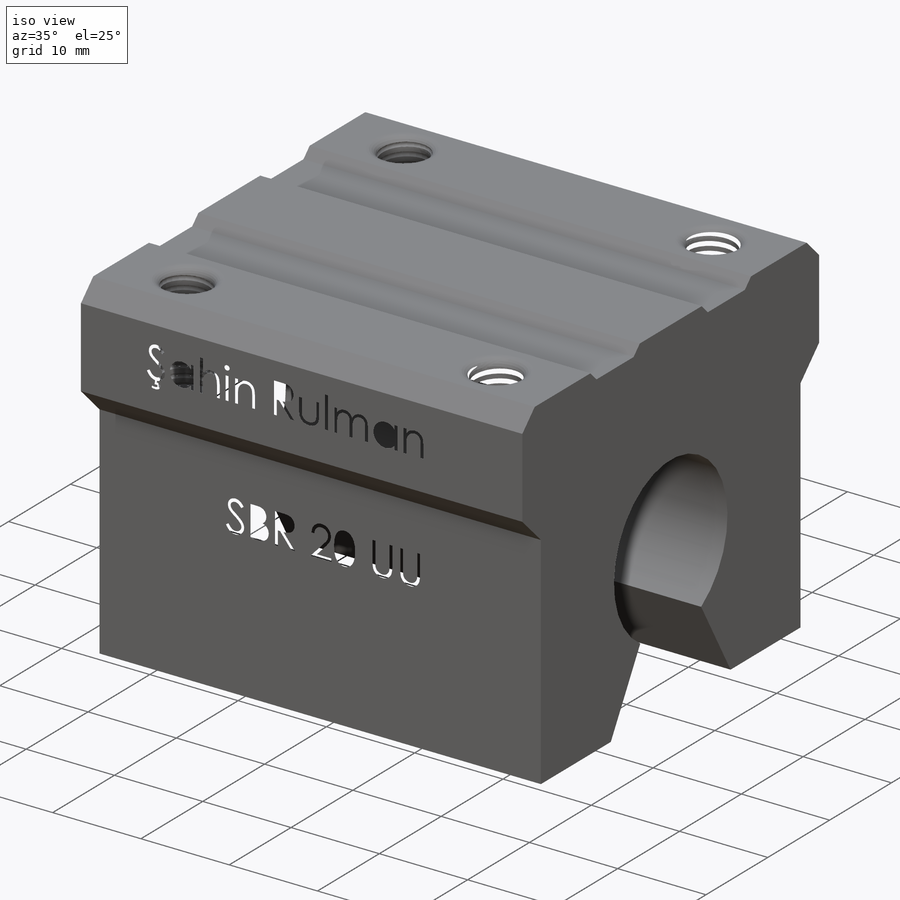
[diagram: iso view]
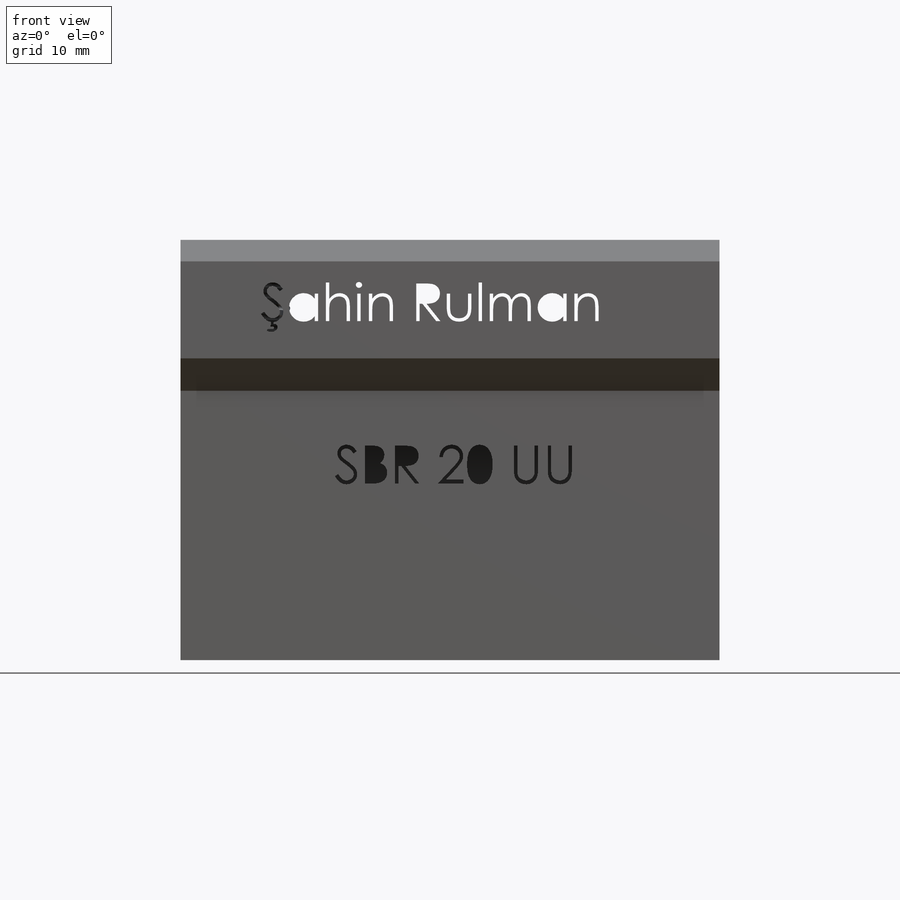
[diagram: front view]
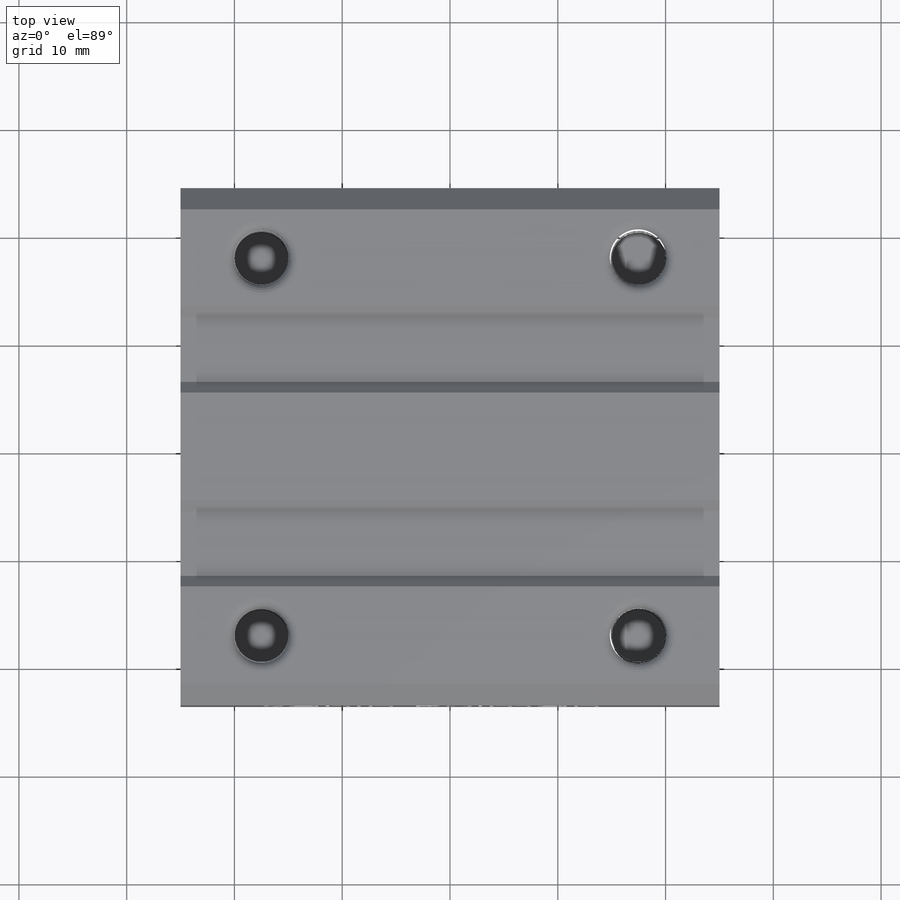
[diagram: top view]
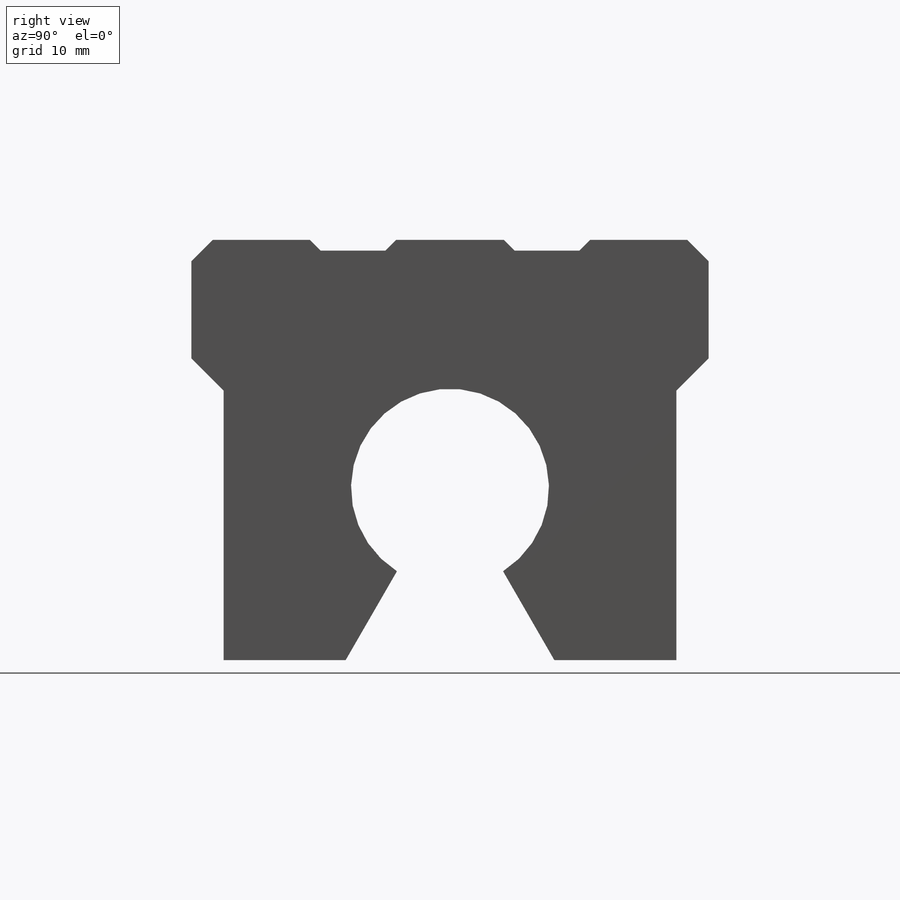
[diagram: right view]
SOLIDWORKS PART (.sldprt)
format: sldprt  version: not decoded by parser v0  size: 1,558,528 bytes
history: native  units: mm
features: sketch x6, cut_extrude x3, mirror x2, material x1, extrude x1, fillet x1, helix x1, plane x1, sweep x1 (+11 scaffold rows collapsed)
feature tree (28):
  scaffold x11  (default folders/planes/origin — collapsed)
  material  "Material <not specified>"
  sketch  "Sketch1"  dims[c1.D7=20.0mm c1.D1=24.0mm c1.D2=48.0mm c1.D3=39.0mm c1.D4=11.0mm c1.D5=3.0mm c1.D6=3.0mm c1.D8=23.0mm c1.D12=~89.402735mm c2.D12=40.0deg c2.D11=1.0mm c3.D12=1.0mm c3.D13=1.0mm c3.D14=1.0mm c3.D11=8.0mm c3.D2=~7.204048mm c4.D2=80.0deg c5.D2=~24.212207mm c6.D2=30.0deg c6.D6=~24.212207mm c7.D6=30.0deg c8.D6=39.0mm c8.D10=5.0mm c8.D11=5.0mm c8.D1=17.5mm c8.D2=17.5mm c8.D7=2.5mm c9.D10=2.5mm c9.D11=2.0mm c9.D12=2.0mm]
  extrude  "Boss-Extrude1"  Depth=50mm
  sketch  "Sketch2"  dims[D3=5.0mm D1=17.5mm D2=17.5mm]
  cut_extrude  "Cut-Extrude1"  Depth=12mm
  fillet  "Fillet1"  Radius=1mm
  sketch  "Sketch3"
  helix  "Helix/Spiral1"  Pitch=12mm
  plane  "Plane1"
  sketch  "Sketch4"  dims[D1=0.5mm]
  sweep  "Cut-Sweep1"
  mirror  "Mirror1"
  mirror  "Mirror2"
  sketch  "Sketch5"
  cut_extrude  "Cut-Extrude2"  Depth=2mm
  sketch  "Sketch6"
  cut_extrude  "Cut-Extrude3"  Depth=2mm
decode coverage: 9 of 15 modeling features carry decoded parameters
note: ~ marks probable driven/reference dimensions
note: suppression state not decoded; provenance and decode notes live in map.json
